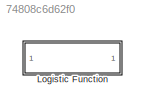
MODEL slx_74808c6d62f0
KIND library
CONFIG AbsTol = auto
CONFIG FixedStep = auto
CONFIG MaxStep = auto
CONFIG MinStep = auto
CONFIG RelTol = 1e-3
CONFIG SampleTimeConstraint = Unconstrained
CONFIG Solver = ode45
CONFIG SolverMode = Auto
CONFIG SolverName = ode45
CONFIG StartTime = 0.0
CONFIG StopTime = 10.0
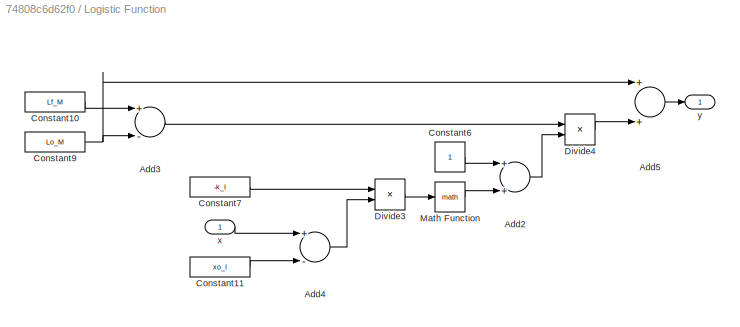
BLOCK [SubSystem] Logistic Function
  Ports = [1, 1]
  RequestExecContextInheritance = off
BLOCK [Sum] Logistic Function/Add2
  InputSameDT = off
  OutDataTypeStr = Inherit: Inherit via internal rule
  Ports = [2, 1]
  SaturateOnIntegerOverflow = off
BLOCK [Sum] Logistic Function/Add3
  InputSameDT = off
  Inputs = +-
  OutDataTypeStr = Inherit: Inherit via internal rule
  Ports = [2, 1]
  SaturateOnIntegerOverflow = off
BLOCK [Sum] Logistic Function/Add4
  InputSameDT = off
  Inputs = +-
  OutDataTypeStr = Inherit: Inherit via internal rule
  Ports = [2, 1]
  SaturateOnIntegerOverflow = off
BLOCK [Sum] Logistic Function/Add5
  InputSameDT = off
  OutDataTypeStr = Inherit: Inherit via internal rule
  Ports = [2, 1]
  SaturateOnIntegerOverflow = off
BLOCK [Constant] Logistic Function/Constant10
  Value = Lf_M
BLOCK [Constant] Logistic Function/Constant11
  Value = xo_I
BLOCK [Constant] Logistic Function/Constant6
BLOCK [Constant] Logistic Function/Constant7
  Value = -k_I
BLOCK [Constant] Logistic Function/Constant9
  Value = Lo_M
BLOCK [Product] Logistic Function/Divide3
  InputSameDT = off
  Inputs = **
  OutDataTypeStr = Inherit: Inherit via internal rule
  Ports = [2, 1]
  RndMeth = Floor
  SaturateOnIntegerOverflow = off
BLOCK [Product] Logistic Function/Divide4
  InputSameDT = off
  Inputs = */
  OutDataTypeStr = Inherit: Inherit via internal rule
  Ports = [2, 1]
  RndMeth = Floor
  SaturateOnIntegerOverflow = off
BLOCK [Math] Logistic Function/Math Function
  Ports = [1, 1]
BLOCK [Inport] Logistic Function/x
  IconDisplay = Port number
BLOCK [Outport] Logistic Function/y
  IconDisplay = Port number
LINE Logistic Function/Add2:1 -> Logistic Function/Divide4:2
LINE Logistic Function/Add3:1 -> Logistic Function/Divide4:1
LINE Logistic Function/Add4:1 -> Logistic Function/Divide3:2
LINE Logistic Function/Add5:1 -> Logistic Function/y:1
LINE Logistic Function/Constant10:1 -> Logistic Function/Add3:1
LINE Logistic Function/Constant11:1 -> Logistic Function/Add4:2
LINE Logistic Function/Constant6:1 -> Logistic Function/Add2:1
LINE Logistic Function/Constant7:1 -> Logistic Function/Divide3:1
NET Logistic Function/Constant9:1 -> Logistic Function/Add3:2, Logistic Function/Add5:1
LINE Logistic Function/Divide3:1 -> Logistic Function/Math Function:1
LINE Logistic Function/Divide4:1 -> Logistic Function/Add5:2
LINE Logistic Function/Math Function:1 -> Logistic Function/Add2:2
LINE Logistic Function/x:1 -> Logistic Function/Add4:1
note: NET lines group one-source signal fan-out (src -> all destinations, sorted); 1:1 wires keep LINE
